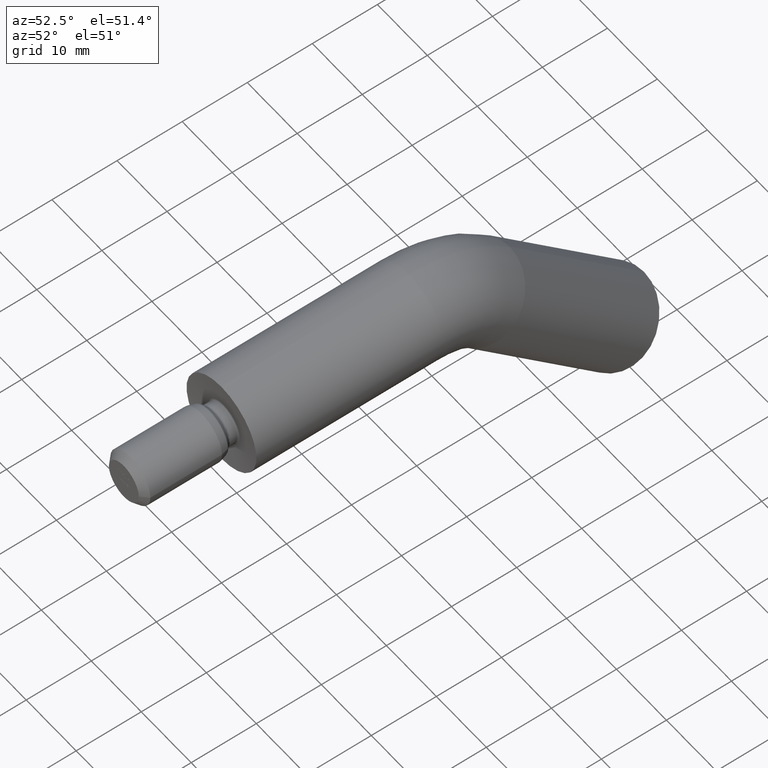
[diagram: clean part render]
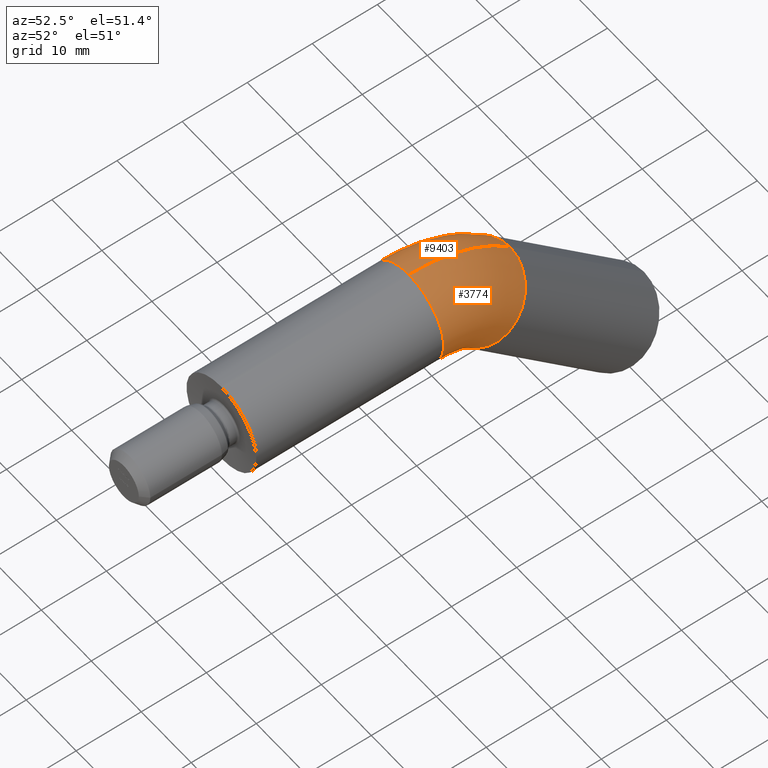
[diagram: same view with one multi-face feature highlighted, each face labeled with its STEP entity id]
A machine part, auxiliary view. The highlighted faces form ONE feature: a constant-radius fillet chain: 2 tangent blend faces with common blend radius 7 mm. The faces share edges in the B-rep.
Their STEP definitions:
[1] entity #9403 (Torus):
#228 = EDGE_LOOP ( 'NONE', ( #4410, #2266, #3164, #12123 ) ) ;
#602 = AXIS2_PLACEMENT_3D ( 'NONE', #5806, #6854, #606 ) ;
#606 = DIRECTION ( 'NONE',  ( 0.0000000000000000000, 0.0000000000000000000, 1.000000000000000000 ) ) ;
#1235 = CARTESIAN_POINT ( 'NONE',  ( 0.0000000000000000000, 39.39339828220188600, -4.393398282201803600 ) ) ;
#1647 = DIRECTION ( 'NONE',  ( -1.000000000000000000, -0.0000000000000000000, -0.0000000000000000000 ) ) ;
#1709 = FACE_OUTER_BOUND ( 'NONE', #228, .T. ) ;
#2266 = ORIENTED_EDGE ( 'NONE', *, *, #11645, .T. ) ;
#2497 = EDGE_CURVE ( 'NONE', #7728, #7786, #9104, .T. ) ;
#2546 = CARTESIAN_POINT ( 'NONE',  ( 0.0000000000000000000, 44.34314575050772300, 0.5563491861040212900 ) ) ;
#2578 = DIRECTION ( 'NONE',  ( 0.0000000000000000000, 0.0000000000000000000, 1.000000000000000000 ) ) ;
#3164 = ORIENTED_EDGE ( 'NONE', *, *, #2497, .F. ) ;
#3274 = CARTESIAN_POINT ( 'NONE',  ( 8.572527594031473200E-016, 28.78679656440364800, -15.00000000000000000 ) ) ;
#3723 = AXIS2_PLACEMENT_3D ( 'NONE', #9973, #1647, #2578 ) ;
#3857 = CIRCLE ( 'NONE', #9545, 7.000000000000000000 ) ;
#4410 = ORIENTED_EDGE ( 'NONE', *, *, #9637, .T. ) ;
#5064 = AXIS2_PLACEMENT_3D ( 'NONE', #1235, #10638, #11702 ) ;
#5205 = CARTESIAN_POINT ( 'NONE',  ( 8.572527594031473200E-016, 34.44365081389604200, -9.343145750507629200 ) ) ;
#5806 = CARTESIAN_POINT ( 'NONE',  ( 0.0000000000000000000, 28.78679656440364800, -15.00000000000000000 ) ) ;
#6059 = VERTEX_POINT ( 'NONE', #8245 ) ;
#6194 = EDGE_CURVE ( 'NONE', #6059, #7728, #6529, .T. ) ;
#6310 = TOROIDAL_SURFACE ( 'NONE', #3723, 15.00000000000000000, 7.000000000000000000 ) ;
#6529 = CIRCLE ( 'NONE', #8842, 8.000000000000000000 ) ;
#6854 = DIRECTION ( 'NONE',  ( -1.000000000000000000, -0.0000000000000000000, -0.0000000000000000000 ) ) ;
#7728 = VERTEX_POINT ( 'NONE', #5205 ) ;
#7786 = VERTEX_POINT ( 'NONE', #2546 ) ;
#8245 = CARTESIAN_POINT ( 'NONE',  ( 0.0000000000000000000, 28.78679656440364800, -7.000000000000000000 ) ) ;
#8469 = VERTEX_POINT ( 'NONE', #10189 ) ;
#8555 = CIRCLE ( 'NONE', #602, 22.00000000000000000 ) ;
#8603 = DIRECTION ( 'NONE',  ( 0.0000000000000000000, 0.0000000000000000000, 1.000000000000000000 ) ) ;
#8842 = AXIS2_PLACEMENT_3D ( 'NONE', #3274, #11665, #8603 ) ;
#9104 = CIRCLE ( 'NONE', #5064, 7.000000000000000900 ) ;
#9403 = ADVANCED_FACE ( 'NONE', ( #1709 ), #6310, .T. ) ;
#9545 = AXIS2_PLACEMENT_3D ( 'NONE', #13364, #10368, #11281 ) ;
#9637 = EDGE_CURVE ( 'NONE', #6059, #8469, #3857, .T. ) ;
#9973 = CARTESIAN_POINT ( 'NONE',  ( 0.0000000000000000000, 28.78679656440364800, -15.00000000000000000 ) ) ;
#10189 = CARTESIAN_POINT ( 'NONE',  ( 8.572527594031473200E-016, 28.78679656440364800, 7.000000000000000000 ) ) ;
#10368 = DIRECTION ( 'NONE',  ( 0.0000000000000000000, 1.000000000000000000, 0.0000000000000000000 ) ) ;
#10638 = DIRECTION ( 'NONE',  ( 0.0000000000000000000, 0.7071067811865463500, -0.7071067811865487900 ) ) ;
#11281 = DIRECTION ( 'NONE',  ( 0.0000000000000000000, 0.0000000000000000000, 1.000000000000000000 ) ) ;
#11645 = EDGE_CURVE ( 'NONE', #8469, #7786, #8555, .T. ) ;
#11665 = DIRECTION ( 'NONE',  ( -1.000000000000000000, -0.0000000000000000000, -0.0000000000000000000 ) ) ;
#11702 = DIRECTION ( 'NONE',  ( 0.0000000000000000000, 0.7071067811865487900, 0.7071067811865462400 ) ) ;
#12123 = ORIENTED_EDGE ( 'NONE', *, *, #6194, .F. ) ;
#13364 = CARTESIAN_POINT ( 'NONE',  ( 0.0000000000000000000, 28.78679656440364800, 0.0000000000000000000 ) ) ;
[2] entity #3774 (Torus):
#140 = DIRECTION ( 'NONE',  ( -1.000000000000000000, -0.0000000000000000000, -0.0000000000000000000 ) ) ;
#196 = CARTESIAN_POINT ( 'NONE',  ( 0.0000000000000000000, 28.78679656440364800, -15.00000000000000000 ) ) ;
#602 = AXIS2_PLACEMENT_3D ( 'NONE', #5806, #6854, #606 ) ;
#606 = DIRECTION ( 'NONE',  ( 0.0000000000000000000, 0.0000000000000000000, 1.000000000000000000 ) ) ;
#2546 = CARTESIAN_POINT ( 'NONE',  ( 0.0000000000000000000, 44.34314575050772300, 0.5563491861040212900 ) ) ;
#3153 = CARTESIAN_POINT ( 'NONE',  ( 0.0000000000000000000, 28.78679656440364800, 0.0000000000000000000 ) ) ;
#3274 = CARTESIAN_POINT ( 'NONE',  ( 8.572527594031473200E-016, 28.78679656440364800, -15.00000000000000000 ) ) ;
#3602 = ORIENTED_EDGE ( 'NONE', *, *, #11831, .T. ) ;
#3774 = ADVANCED_FACE ( 'NONE', ( #5553 ), #8486, .T. ) ;
#4104 = DIRECTION ( 'NONE',  ( 0.0000000000000000000, 1.000000000000000000, 0.0000000000000000000 ) ) ;
#5103 = DIRECTION ( 'NONE',  ( 0.0000000000000000000, 0.0000000000000000000, 1.000000000000000000 ) ) ;
#5205 = CARTESIAN_POINT ( 'NONE',  ( 8.572527594031473200E-016, 34.44365081389604200, -9.343145750507629200 ) ) ;
#5553 = FACE_OUTER_BOUND ( 'NONE', #10673, .T. ) ;
#5575 = DIRECTION ( 'NONE',  ( 0.0000000000000000000, 0.7071067811865463500, -0.7071067811865487900 ) ) ;
#5806 = CARTESIAN_POINT ( 'NONE',  ( 0.0000000000000000000, 28.78679656440364800, -15.00000000000000000 ) ) ;
#5997 = ORIENTED_EDGE ( 'NONE', *, *, #12953, .F. ) ;
#6021 = ORIENTED_EDGE ( 'NONE', *, *, #6194, .T. ) ;
#6039 = AXIS2_PLACEMENT_3D ( 'NONE', #10752, #5575, #11858 ) ;
#6059 = VERTEX_POINT ( 'NONE', #8245 ) ;
#6125 = AXIS2_PLACEMENT_3D ( 'NONE', #196, #140, #6301 ) ;
#6194 = EDGE_CURVE ( 'NONE', #6059, #7728, #6529, .T. ) ;
#6301 = DIRECTION ( 'NONE',  ( 0.0000000000000000000, 0.0000000000000000000, 1.000000000000000000 ) ) ;
#6529 = CIRCLE ( 'NONE', #8842, 8.000000000000000000 ) ;
#6854 = DIRECTION ( 'NONE',  ( -1.000000000000000000, -0.0000000000000000000, -0.0000000000000000000 ) ) ;
#7728 = VERTEX_POINT ( 'NONE', #5205 ) ;
#7786 = VERTEX_POINT ( 'NONE', #2546 ) ;
#8245 = CARTESIAN_POINT ( 'NONE',  ( 0.0000000000000000000, 28.78679656440364800, -7.000000000000000000 ) ) ;
#8469 = VERTEX_POINT ( 'NONE', #10189 ) ;
#8486 = TOROIDAL_SURFACE ( 'NONE', #6125, 15.00000000000000000, 7.000000000000000000 ) ;
#8555 = CIRCLE ( 'NONE', #602, 22.00000000000000000 ) ;
#8561 = AXIS2_PLACEMENT_3D ( 'NONE', #3153, #4104, #5103 ) ;
#8603 = DIRECTION ( 'NONE',  ( 0.0000000000000000000, 0.0000000000000000000, 1.000000000000000000 ) ) ;
#8842 = AXIS2_PLACEMENT_3D ( 'NONE', #3274, #11665, #8603 ) ;
#9640 = CIRCLE ( 'NONE', #6039, 7.000000000000000900 ) ;
#10189 = CARTESIAN_POINT ( 'NONE',  ( 8.572527594031473200E-016, 28.78679656440364800, 7.000000000000000000 ) ) ;
#10673 = EDGE_LOOP ( 'NONE', ( #12863, #3602, #6021, #5997 ) ) ;
#10752 = CARTESIAN_POINT ( 'NONE',  ( 0.0000000000000000000, 39.39339828220188600, -4.393398282201803600 ) ) ;
#11440 = CIRCLE ( 'NONE', #8561, 7.000000000000000000 ) ;
#11645 = EDGE_CURVE ( 'NONE', #8469, #7786, #8555, .T. ) ;
#11665 = DIRECTION ( 'NONE',  ( -1.000000000000000000, -0.0000000000000000000, -0.0000000000000000000 ) ) ;
#11831 = EDGE_CURVE ( 'NONE', #8469, #6059, #11440, .T. ) ;
#11858 = DIRECTION ( 'NONE',  ( 0.0000000000000000000, 0.7071067811865487900, 0.7071067811865462400 ) ) ;
#12863 = ORIENTED_EDGE ( 'NONE', *, *, #11645, .F. ) ;
#12953 = EDGE_CURVE ( 'NONE', #7786, #7728, #9640, .T. ) ;